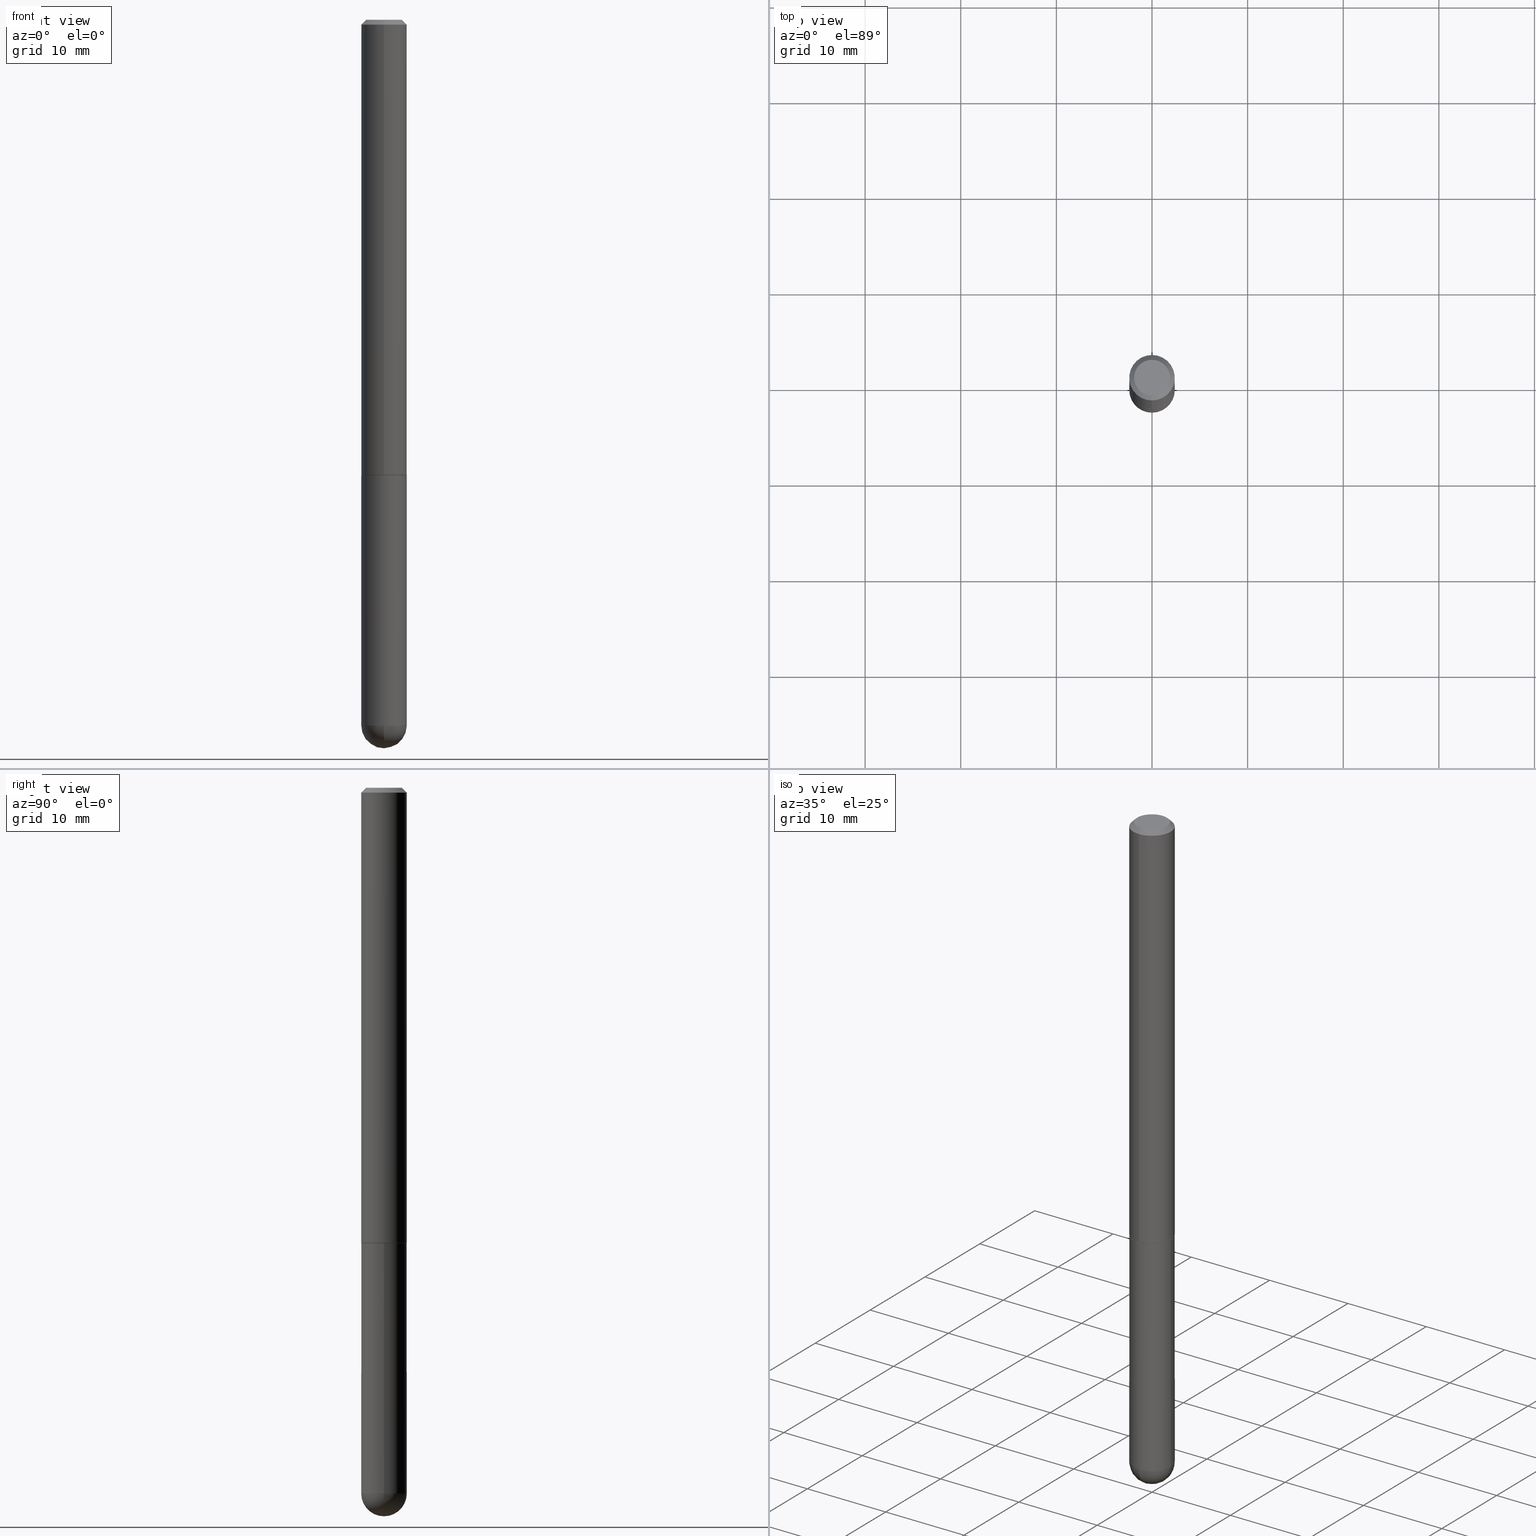
[diagram: canonical four-view strip — front | top / right | iso, engineering-drawing reading convention]
A machine part, canonical four-view strip (front | top / right | iso — engineering-drawing reading convention). The complete STEP part file that produces these views, byte-faithful:
ISO-10303-21;
HEADER;
FILE_DESCRIPTION (( 'STEP AP203' ),
    '1' );
FILE_NAME ('31979.STEP',
    '2024-02-21T17:25:32',
    ( '' ),
    ( '' ),
    'SwSTEP 2.0',
    'SolidWorks 2023',
    '' );
FILE_SCHEMA (( 'CONFIG_CONTROL_DESIGN' ));
ENDSEC;

DATA;
#1 = CARTESIAN_POINT ( 'NONE',  ( -6.431716872910807882E-16, -0.09375000000000011102, -0.01999999999999968817 ) ) ;
#2 = CARTESIAN_POINT ( 'NONE',  ( 6.546527510331333567E-16, 0.09374999999999346356, -1.875000000000000444 ) ) ;
#3 = CONICAL_SURFACE ( 'NONE', #42, 0.09375000000000004163, 0.7853981633974469467 ) ;
#4 = COORDINATED_UNIVERSAL_TIME_OFFSET ( 5, 0, .BEHIND. ) ;
#5 = APPROVAL_STATUS ( 'not_yet_approved' ) ;
#6 = APPROVAL_DATE_TIME ( #284, #140 ) ;
#7 = CALENDAR_DATE ( 2024, 21, 2 ) ;
#8 = CARTESIAN_POINT ( 'NONE',  ( 4.585254011597131119E-29, -6.546527510330898707E-15, -1.875000000000000000 ) ) ;
#9 = CARTESIAN_POINT ( 'NONE',  ( 4.890944814244553657E-31, -6.982952364192427333E-17, -0.02000000000000001776 ) ) ;
#10 = AXIS2_PLACEMENT_3D ( 'NONE', #368, #96, #164 ) ;
#11 = CIRCLE ( 'NONE', #192, 0.09374999999999998612 ) ;
#12 = DIRECTION ( 'NONE',  ( 1.000000000000000000, -6.982962677686261189E-15, 0.000000000000000000 ) ) ;
#13 = CARTESIAN_POINT ( 'NONE',  ( 4.582815290947142665E-29, -6.543026365248299499E-15, -1.874000000000000110 ) ) ;
#14 = CARTESIAN_POINT ( 'NONE',  ( 7.009295232622052523E-29, -1.094288585279848383E-14, -3.000000000000000444 ) ) ;
#15 = EDGE_LOOP ( 'NONE', ( #345, #296, #24, #259, #21 ) ) ;
#16 = DIRECTION ( 'NONE',  ( 2.438088387897960049E-29, -3.491481338843145188E-15, -1.000000000000000000 ) ) ;
#17 = AXIS2_PLACEMENT_3D ( 'NONE', #51, #74, #346 ) ;
#18 = ORIENTED_EDGE ( 'NONE', *, *, #193, .F. ) ;
#19 = EDGE_CURVE ( 'NONE', #208, #76, #230, .T. ) ;
#20 = DIRECTION ( 'NONE',  ( -2.445468806185136597E-29, 3.491481338843145583E-15, 1.000000000000000000 ) ) ;
#21 = ORIENTED_EDGE ( 'NONE', *, *, #148, .F. ) ;
#22 = EDGE_CURVE ( 'NONE', #171, #89, #121, .T. ) ;
#23 = EDGE_CURVE ( 'NONE', #76, #208, #127, .T. ) ;
#24 = ORIENTED_EDGE ( 'NONE', *, *, #321, .T. ) ;
#25 = VECTOR ( 'NONE', #88, 39.37007874015748143 ) ;
#26 = VECTOR ( 'NONE', #278, 39.37007874015748143 ) ;
#27 = CARTESIAN_POINT ( 'NONE',  ( 4.585260763354266231E-29, -6.546517841430395845E-15, -1.875000000000000000 ) ) ;
#28 = FACE_OUTER_BOUND ( 'NONE', #238, .T. ) ;
#29 = EDGE_CURVE ( 'NONE', #101, #76, #395, .T. ) ;
#30 = CARTESIAN_POINT ( 'NONE',  ( -0.09375000000000001388, -7.680688760896801533E-15, -1.875000000000000000 ) ) ;
#31 = APPLICATION_PROTOCOL_DEFINITION ( 'international standard', 'config_control_design', 1994, #396 ) ;
#32 = COORDINATED_UNIVERSAL_TIME_OFFSET ( 5, 0, .BEHIND. ) ;
#33 = CC_DESIGN_APPROVAL ( #140, ( #107 ) ) ;
#34 = APPROVAL_STATUS ( 'not_yet_approved' ) ;
#35 = PERSON_AND_ORGANIZATION ( #70, #384 ) ;
#36 = AXIS2_PLACEMENT_3D ( 'NONE', #305, #268, #337 ) ;
#37 = AXIS2_PLACEMENT_3D ( 'NONE', #27, #403, #303 ) ;
#38 = EDGE_CURVE ( 'NONE', #244, #146, #265, .T. ) ;
#39 = FACE_OUTER_BOUND ( 'NONE', #57, .T. ) ;
#40 = ORIENTED_EDGE ( 'NONE', *, *, #362, .F. ) ;
#41 = DIRECTION ( 'NONE',  ( -2.445472407122275024E-29, 3.491476182096210881E-15, 1.000000000000000000 ) ) ;
#42 = AXIS2_PLACEMENT_3D ( 'NONE', #370, #379, #75 ) ;
#43 = DIRECTION ( 'NONE',  ( -1.000000000000000000, 7.105427357601001070E-15, -4.926315508542082329E-29 ) ) ;
#44 = CARTESIAN_POINT ( 'NONE',  ( -6.661338147750251947E-16, -0.09375000000001050549, -2.906249999999999556 ) ) ;
#45 = ORIENTED_EDGE ( 'NONE', *, *, #60, .F. ) ;
#46 = ORIENTED_EDGE ( 'NONE', *, *, #233, .F. ) ;
#47 = DIRECTION ( 'NONE',  ( 6.982962677686265133E-15, 1.000000000000000000, -5.827942386483744967E-15 ) ) ;
#48 = EDGE_LOOP ( 'NONE', ( #173, #369, #78, #103 ) ) ;
#49 = CARTESIAN_POINT ( 'NONE',  ( 0.000000000000000000, 0.000000000000000000, 0.000000000000000000 ) ) ;
#50 = VERTEX_POINT ( 'NONE', #14 ) ;
#51 = CARTESIAN_POINT ( 'NONE',  ( 4.585254011597131119E-29, -6.546527510330898707E-15, -1.875000000000000000 ) ) ;
#52 = PERSON_AND_ORGANIZATION_ROLE ( 'design_owner' ) ;
#53 = AXIS2_PLACEMENT_3D ( 'NONE', #343, #177, #100 ) ;
#54 = DATE_AND_TIME ( #90, #178 ) ;
#55 = APPROVAL_PERSON_ORGANIZATION ( #85, #291, #390 ) ;
#56 = CALENDAR_DATE ( 2024, 21, 2 ) ;
#57 = EDGE_LOOP ( 'NONE', ( #389, #179, #73, #64 ) ) ;
#58 = AXIS2_PLACEMENT_3D ( 'NONE', #311, #342, #142 ) ;
#59 = FACE_OUTER_BOUND ( 'NONE', #309, .T. ) ;
#60 = EDGE_CURVE ( 'NONE', #50, #146, #106, .T. ) ;
#61 = ORIENTED_EDGE ( 'NONE', *, *, #193, .T. ) ;
#62 = CARTESIAN_POINT ( 'NONE',  ( 4.582815290947142665E-29, -6.543026365248299499E-15, -1.874000000000000110 ) ) ;
#63 = DIRECTION ( 'NONE',  ( -2.445468806185136877E-29, 3.491481338843145188E-15, 1.000000000000000000 ) ) ;
#64 = ORIENTED_EDGE ( 'NONE', *, *, #174, .F. ) ;
#65 = CARTESIAN_POINT ( 'NONE',  ( 6.546527510330881944E-16, 0.09374999999999997224, -0.02000000000000034736 ) ) ;
#66 = EDGE_CURVE ( 'NONE', #89, #229, #326, .T. ) ;
#67 = CARTESIAN_POINT ( 'NONE',  ( -6.476697883553553415E-16, -0.09275000000000654943, -1.874999999999999778 ) ) ;
#68 = ORIENTED_EDGE ( 'NONE', *, *, #150, .F. ) ;
#69 = ORIENTED_EDGE ( 'NONE', *, *, #148, .T. ) ;
#70 = PERSON ( 'UNSPECIFIED', 'UNSPECIFIED', 'UNSPECIFIED', ('UNSPECIFIED'), ('UNSPECIFIED'), ('UNSPECIFIED') ) ;
#71 = AXIS2_PLACEMENT_3D ( 'NONE', #371, #149, #186 ) ;
#72 = CIRCLE ( 'NONE', #294, 0.07374999999999994060 ) ;
#73 = ORIENTED_EDGE ( 'NONE', *, *, #113, .T. ) ;
#74 = DIRECTION ( 'NONE',  ( -2.445468806185136597E-29, 3.491481338843145583E-15, 1.000000000000000000 ) ) ;
#75 = DIRECTION ( 'NONE',  ( 6.982962677686266711E-15, 1.000000000000000000, -3.505871591869136121E-15 ) ) ;
#76 = VERTEX_POINT ( 'NONE', #65 ) ;
#77 = FACE_OUTER_BOUND ( 'NONE', #200, .T. ) ;
#78 = ORIENTED_EDGE ( 'NONE', *, *, #19, .T. ) ;
#79 = DIRECTION ( 'NONE',  ( -6.982962677686267499E-15, -1.000000000000000000, 3.491476182096211275E-15 ) ) ;
#80 = CIRCLE ( 'NONE', #98, 0.09274999999999999911 ) ;
#81 = LOCAL_TIME ( 12, 25, 32.00000000000000000, #4 ) ;
#82 =( LENGTH_UNIT ( ) NAMED_UNIT ( * ) SI_UNIT ( $, .METRE. ) );
#83 = ADVANCED_FACE ( 'NONE', ( #39 ), #364, .T. ) ;
#84 = ADVANCED_FACE ( 'NONE', ( #133 ), #183, .T. ) ;
#85 = PERSON_AND_ORGANIZATION ( #70, #384 ) ;
#86 = AXIS2_PLACEMENT_3D ( 'NONE', #49, #203, #212 ) ;
#87 =( NAMED_UNIT ( * ) SI_UNIT ( $, .STERADIAN. ) SOLID_ANGLE_UNIT ( ) );
#88 = DIRECTION ( 'NONE',  ( 4.937700262164540942E-15, 0.7071067811865441310, -0.7071067811865509034 ) ) ;
#89 = VERTEX_POINT ( 'NONE', #330 ) ;
#90 = CALENDAR_DATE ( 2024, 21, 2 ) ;
#91 = DIRECTION ( 'NONE',  ( -2.445472407122275024E-29, 3.491476182096210881E-15, 1.000000000000000000 ) ) ;
#92 = ORIENTED_EDGE ( 'NONE', *, *, #362, .T. ) ;
#93 = AXIS2_PLACEMENT_3D ( 'NONE', #241, #138, #377 ) ;
#94 = DIRECTION ( 'NONE',  ( 2.445472407122274464E-29, -3.491476182096211275E-15, -1.000000000000000000 ) ) ;
#95 = ORIENTED_EDGE ( 'NONE', *, *, #317, .T. ) ;
#96 = DIRECTION ( 'NONE',  ( -2.445472407122275024E-29, 3.491476182096210881E-15, 1.000000000000000000 ) ) ;
#97 = ORIENTED_EDGE ( 'NONE', *, *, #207, .F. ) ;
#98 = AXIS2_PLACEMENT_3D ( 'NONE', #126, #124, #357 ) ;
#99 = CYLINDRICAL_SURFACE ( 'NONE', #10, 0.09375000000000013878 ) ;
#100 = DIRECTION ( 'NONE',  ( -6.982962677686267499E-15, -1.000000000000000000, 3.491476182096211275E-15 ) ) ;
#101 = VERTEX_POINT ( 'NONE', #297 ) ;
#102 = DIRECTION ( 'NONE',  ( -2.445472407122274744E-29, 3.491476182096211275E-15, 1.000000000000000000 ) ) ;
#103 = ORIENTED_EDGE ( 'NONE', *, *, #29, .F. ) ;
#104 = FACE_OUTER_BOUND ( 'NONE', #136, .T. ) ;
#105 = FACE_OUTER_BOUND ( 'NONE', #134, .T. ) ;
#106 = CIRCLE ( 'NONE', #115, 0.09375000000000026368 ) ;
#107 = SECURITY_CLASSIFICATION ( '', '', #247 ) ;
#108 = VERTEX_POINT ( 'NONE', #44 ) ;
#109 =( CONVERSION_BASED_UNIT ( 'INCH', #347 ) LENGTH_UNIT ( ) NAMED_UNIT ( #306 ) );
#110 = SPHERICAL_SURFACE ( 'NONE', #167, 0.09375000000000026368 ) ;
#111 = ORIENTED_EDGE ( 'NONE', *, *, #163, .F. ) ;
#112 = DIRECTION ( 'NONE',  ( -6.982962677686265922E-15, -1.000000000000000000, 2.945388672414299892E-15 ) ) ;
#113 = EDGE_CURVE ( 'NONE', #171, #374, #287, .T. ) ;
#114 = CARTESIAN_POINT ( 'NONE',  ( -3.235934848960953060E-45, 4.620043726135303486E-31, 1.323235068830263226E-16 ) ) ;
#115 = AXIS2_PLACEMENT_3D ( 'NONE', #333, #261, #231 ) ;
#116 = PERSON_AND_ORGANIZATION_ROLE ( 'design_supplier' ) ;
#117 = APPROVAL ( #34, 'UNSPECIFIED' ) ;
#118 = APPROVAL_ROLE ( '' ) ;
#119 = PERSON_AND_ORGANIZATION ( #70, #384 ) ;
#120 = VECTOR ( 'NONE', #162, 39.37007874015748143 ) ;
#121 = CIRCLE ( 'NONE', #219, 0.09274999999999999911 ) ;
#122 = ORIENTED_EDGE ( 'NONE', *, *, #412, .T. ) ;
#123 = MECHANICAL_CONTEXT ( 'NONE', #144, 'mechanical' ) ;
#124 = DIRECTION ( 'NONE',  ( -2.445472407122275024E-29, 3.491476182096210881E-15, 1.000000000000000000 ) ) ;
#125 = EDGE_CURVE ( 'NONE', #191, #365, #170, .T. ) ;
#126 = CARTESIAN_POINT ( 'NONE',  ( 4.585260763354266231E-29, -6.546517841430395845E-15, -1.875000000000000000 ) ) ;
#127 = CIRCLE ( 'NONE', #71, 0.09375000000000004163 ) ;
#128 = LINE ( 'NONE', #361, #205 ) ;
#129 = UNCERTAINTY_MEASURE_WITH_UNIT (LENGTH_MEASURE( 1.000000000000000082E-05 ), #109, 'distance_accuracy_value', 'NONE');
#130 = CARTESIAN_POINT ( 'NONE',  ( -6.431716872910807882E-16, -0.09375000000000011102, -0.01999999999999968817 ) ) ;
#131 = ADVANCED_FACE ( 'NONE', ( #399 ), #99, .T. ) ;
#132 = EDGE_LOOP ( 'NONE', ( #45, #176, #302, #202 ) ) ;
#133 = FACE_OUTER_BOUND ( 'NONE', #48, .T. ) ;
#134 = EDGE_LOOP ( 'NONE', ( #358, #141, #211, #97, #398 ) ) ;
#135 = AXIS2_PLACEMENT_3D ( 'NONE', #175, #308, #277 ) ;
#136 = EDGE_LOOP ( 'NONE', ( #242, #111 ) ) ;
#137 = DIRECTION ( 'NONE',  ( 1.000000000000000000, -6.982962677686263555E-15, 0.000000000000000000 ) ) ;
#138 = DIRECTION ( 'NONE',  ( -2.445468806185136597E-29, 3.491481338843145583E-15, 1.000000000000000000 ) ) ;
#139 = ORIENTED_EDGE ( 'NONE', *, *, #23, .F. ) ;
#140 = APPROVAL ( #5, 'UNSPECIFIED' ) ;
#141 = ORIENTED_EDGE ( 'NONE', *, *, #125, .T. ) ;
#142 = DIRECTION ( 'NONE',  ( 1.000000000000000000, -6.982962677686263555E-15, 0.000000000000000000 ) ) ;
#143 = CYLINDRICAL_SURFACE ( 'NONE', #93, 0.09374999999999998612 ) ;
#144 = APPLICATION_CONTEXT ( 'configuration controlled 3d designs of mechanical parts and assemblies' ) ;
#145 = CC_DESIGN_SECURITY_CLASSIFICATION ( #107, ( #401 ) ) ;
#146 = VERTEX_POINT ( 'NONE', #254 ) ;
#147 = PLANE ( 'NONE',  #400 ) ;
#148 = EDGE_CURVE ( 'NONE', #365, #204, #310, .T. ) ;
#149 = DIRECTION ( 'NONE',  ( -2.445472407122275024E-29, 3.491476182096210881E-15, 1.000000000000000000 ) ) ;
#150 = EDGE_CURVE ( 'NONE', #50, #108, #300, .T. ) ;
#151 = CC_DESIGN_PERSON_AND_ORGANIZATION_ASSIGNMENT ( #318, #320, ( #107 ) ) ;
#152 = DATE_AND_TIME ( #185, #81 ) ;
#153 = CARTESIAN_POINT ( 'NONE',  ( 6.776023940061668108E-29, -1.062130000915294250E-14, -2.906250000000000000 ) ) ;
#154 = AXIS2_PLACEMENT_3D ( 'NONE', #8, #201, #12 ) ;
#155 = DATE_AND_TIME ( #157, #168 ) ;
#156 = COORDINATED_UNIVERSAL_TIME_OFFSET ( 5, 0, .BEHIND. ) ;
#157 = CALENDAR_DATE ( 2024, 21, 2 ) ;
#158 = ADVANCED_BREP_SHAPE_REPRESENTATION ( '31979', ( #187, #335, #352 ), #216 ) ;
#159 = CIRCLE ( 'NONE', #312, 0.09375000000000024980 ) ;
#160 = AXIS2_PLACEMENT_3D ( 'NONE', #376, #269, #112 ) ;
#161 = PERSON_AND_ORGANIZATION ( #70, #384 ) ;
#162 = DIRECTION ( 'NONE',  ( 5.024295867788490741E-15, 0.7071067811866103003, 0.7071067811864847341 ) ) ;
#163 = EDGE_CURVE ( 'NONE', #89, #171, #80, .T. ) ;
#164 = DIRECTION ( 'NONE',  ( -6.982962677686266711E-15, -1.000000000000000000, 3.491476182096210486E-15 ) ) ;
#165 = ADVANCED_FACE ( 'NONE', ( #59 ), #392, .F. ) ;
#166 = CARTESIAN_POINT ( 'NONE',  ( 0.09375000000000001388, -7.201180261363985422E-15, -1.875000000000000000 ) ) ;
#167 = AXIS2_PLACEMENT_3D ( 'NONE', #373, #340, #47 ) ;
#168 = LOCAL_TIME ( 12, 25, 32.00000000000000000, #32 ) ;
#169 = CARTESIAN_POINT ( 'NONE',  ( 5.149934974793617952E-16, 0.07374999999999994060, -1.913346149880821875E-16 ) ) ;
#170 = LINE ( 'NONE', #295, #281 ) ;
#171 = VERTEX_POINT ( 'NONE', #292 ) ;
#172 = CIRCLE ( 'NONE', #240, 0.09375000000000024980 ) ;
#173 = ORIENTED_EDGE ( 'NONE', *, *, #412, .F. ) ;
#174 = EDGE_CURVE ( 'NONE', #229, #374, #159, .T. ) ;
#175 = CARTESIAN_POINT ( 'NONE',  ( 0.000000000000000000, 0.000000000000000000, 0.000000000000000000 ) ) ;
#176 = ORIENTED_EDGE ( 'NONE', *, *, #150, .T. ) ;
#177 = DIRECTION ( 'NONE',  ( -2.445472407122275024E-29, 3.491476182096210881E-15, 1.000000000000000000 ) ) ;
#178 = LOCAL_TIME ( 12, 25, 32.00000000000000000, #324 ) ;
#179 = ORIENTED_EDGE ( 'NONE', *, *, #163, .T. ) ;
#180 = PLANE ( 'NONE',  #37 ) ;
#181 = PERSON_AND_ORGANIZATION ( #70, #384 ) ;
#182 = COORDINATED_UNIVERSAL_TIME_OFFSET ( 5, 0, .BEHIND. ) ;
#183 = CONICAL_SURFACE ( 'NONE', #375, 0.09375000000000004163, 0.7853981633974469467 ) ;
#184 = VECTOR ( 'NONE', #314, 39.37007874015748143 ) ;
#185 = CALENDAR_DATE ( 2024, 21, 2 ) ;
#186 = DIRECTION ( 'NONE',  ( -6.982962677686266711E-15, -1.000000000000000000, 3.505871591869136121E-15 ) ) ;
#187 = MANIFOLD_SOLID_BREP ( 'Body-Move/Copy2[1]', #258 ) ;
#188 = CARTESIAN_POINT ( 'NONE',  ( 0.000000000000000000, 0.000000000000000000, 0.000000000000000000 ) ) ;
#189 = APPROVAL_DATE_TIME ( #152, #291 ) ;
#190 = AXIS2_PLACEMENT_3D ( 'NONE', #169, #94, #225 ) ;
#191 = VERTEX_POINT ( 'NONE', #329 ) ;
#192 = AXIS2_PLACEMENT_3D ( 'NONE', #276, #275, #137 ) ;
#193 = EDGE_CURVE ( 'NONE', #374, #229, #172, .T. ) ;
#194 = DIRECTION ( 'NONE',  ( 2.445472407122275024E-29, -3.491476182096210881E-15, -1.000000000000000000 ) ) ;
#195 = DIRECTION ( 'NONE',  ( -6.982962677686265133E-15, -1.000000000000000000, 2.913971193241872878E-15 ) ) ;
#196 = ORIENTED_EDGE ( 'NONE', *, *, #113, .F. ) ;
#197 = DIRECTION ( 'NONE',  ( -4.937700262164969294E-15, -0.7071067811866054154, 0.7071067811864896191 ) ) ;
#198 = AXIS2_PLACEMENT_3D ( 'NONE', #328, #91, #262 ) ;
#199 = DIRECTION ( 'NONE',  ( -2.445468806185136597E-29, 3.491481338843145583E-15, 1.000000000000000000 ) ) ;
#200 = EDGE_LOOP ( 'NONE', ( #290, #46, #255, #405 ) ) ;
#201 = DIRECTION ( 'NONE',  ( -2.445468806185136597E-29, 3.491481338843145583E-15, 1.000000000000000000 ) ) ;
#202 = ORIENTED_EDGE ( 'NONE', *, *, #237, .F. ) ;
#203 = DIRECTION ( 'NONE',  ( -2.445468806185136597E-29, 3.491481338843145583E-15, 1.000000000000000000 ) ) ;
#204 = VERTEX_POINT ( 'NONE', #166 ) ;
#205 = VECTOR ( 'NONE', #63, 39.37007874015748143 ) ;
#206 = CC_DESIGN_APPROVAL ( #117, ( #359 ) ) ;
#207 = EDGE_CURVE ( 'NONE', #244, #204, #128, .T. ) ;
#208 = VERTEX_POINT ( 'NONE', #130 ) ;
#209 = CC_DESIGN_PERSON_AND_ORGANIZATION_ASSIGNMENT ( #35, #116, ( #401 ) ) ;
#210 = CYLINDRICAL_SURFACE ( 'NONE', #86, 0.09374999999999998612 ) ;
#211 = ORIENTED_EDGE ( 'NONE', *, *, #317, .F. ) ;
#212 = DIRECTION ( 'NONE',  ( 1.000000000000000000, -6.982962677686266711E-15, 4.876176775795935793E-29 ) ) ;
#213 = ORIENTED_EDGE ( 'NONE', *, *, #22, .T. ) ;
#214 = CARTESIAN_POINT ( 'NONE',  ( 6.661338147750948117E-16, 0.09375000000000013878, -3.273258920715202261E-16 ) ) ;
#215 = VECTOR ( 'NONE', #102, 39.37007874015748143 ) ;
#216 =( GEOMETRIC_REPRESENTATION_CONTEXT ( 3 ) GLOBAL_UNCERTAINTY_ASSIGNED_CONTEXT ( ( #129 ) ) GLOBAL_UNIT_ASSIGNED_CONTEXT ( ( #109, #372, #87 ) ) REPRESENTATION_CONTEXT ( 'NONE', 'WORKASPACE' ) );
#217 = DIRECTION ( 'NONE',  ( 1.000000000000000000, 0.000000000000000000, 0.000000000000000000 ) ) ;
#218 = CC_DESIGN_DATE_AND_TIME_ASSIGNMENT ( #155, #282, ( #107 ) ) ;
#219 = AXIS2_PLACEMENT_3D ( 'NONE', #380, #274, #402 ) ;
#220 = LOCAL_TIME ( 12, 25, 32.00000000000000000, #156 ) ;
#221 = PERSON_AND_ORGANIZATION ( #70, #384 ) ;
#222 = PERSON_AND_ORGANIZATION_ROLE ( 'creator' ) ;
#223 = ADVANCED_FACE ( 'NONE', ( #397 ), #110, .T. ) ;
#224 = CARTESIAN_POINT ( 'NONE',  ( 6.776023940061668108E-29, -1.062130000915294250E-14, -2.906250000000000000 ) ) ;
#225 = DIRECTION ( 'NONE',  ( 6.982962677686265922E-15, 1.000000000000000000, -3.491476182096211275E-15 ) ) ;
#226 = DIRECTION ( 'NONE',  ( -6.982962677686265133E-15, -1.000000000000000000, 2.913971193241872878E-15 ) ) ;
#227 = PRODUCT_RELATED_PRODUCT_CATEGORY ( 'detail', '', ( #325 ) ) ;
#228 = CARTESIAN_POINT ( 'NONE',  ( 6.590283874175386700E-16, 0.09274999999999346267, -1.875000000000000444 ) ) ;
#229 = VERTEX_POINT ( 'NONE', #304 ) ;
#230 = CIRCLE ( 'NONE', #36, 0.09375000000000004163 ) ;
#231 = DIRECTION ( 'NONE',  ( 6.982962677686265133E-15, 1.000000000000000000, 0.000000000000000000 ) ) ;
#232 = EDGE_LOOP ( 'NONE', ( #68, #327, #288, #235 ) ) ;
#233 = EDGE_CURVE ( 'NONE', #101, #411, #338, .T. ) ;
#234 = CARTESIAN_POINT ( 'NONE',  ( 7.107143717975553234E-29, -1.014711764101289221E-14, -2.906250000000000000 ) ) ;
#235 = ORIENTED_EDGE ( 'NONE', *, *, #321, .F. ) ;
#236 = FACE_OUTER_BOUND ( 'NONE', #344, .T. ) ;
#237 = EDGE_CURVE ( 'NONE', #146, #191, #391, .T. ) ;
#238 = EDGE_LOOP ( 'NONE', ( #95, #69 ) ) ;
#239 = LINE ( 'NONE', #1, #26 ) ;
#240 = AXIS2_PLACEMENT_3D ( 'NONE', #13, #41, #226 ) ;
#241 = CARTESIAN_POINT ( 'NONE',  ( 0.000000000000000000, 0.000000000000000000, 0.000000000000000000 ) ) ;
#242 = ORIENTED_EDGE ( 'NONE', *, *, #22, .F. ) ;
#243 = DIRECTION ( 'NONE',  ( 1.000000000000000000, -6.982962677686263555E-15, 0.000000000000000000 ) ) ;
#244 = VERTEX_POINT ( 'NONE', #406 ) ;
#245 = FACE_OUTER_BOUND ( 'NONE', #15, .T. ) ;
#246 = CIRCLE ( 'NONE', #58, 0.09374999999999998612 ) ;
#247 = SECURITY_CLASSIFICATION_LEVEL ( 'unclassified' ) ;
#248 = PERSON_AND_ORGANIZATION_ROLE ( 'creator' ) ;
#249 = SHAPE_DEFINITION_REPRESENTATION ( #322, #158 ) ;
#250 = VECTOR ( 'NONE', #197, 39.37007874015748143 ) ;
#251 = ADVANCED_FACE ( 'NONE', ( #105 ), #143, .T. ) ;
#252 = CC_DESIGN_DATE_AND_TIME_ASSIGNMENT ( #54, #253, ( #359 ) ) ;
#253 = DATE_TIME_ROLE ( 'creation_date' ) ;
#254 = CARTESIAN_POINT ( 'NONE',  ( 6.546527510331577127E-16, 0.09374999999998974431, -2.906250000000000888 ) ) ;
#255 = ORIENTED_EDGE ( 'NONE', *, *, #29, .T. ) ;
#256 = ADVANCED_FACE ( 'NONE', ( #77 ), #3, .T. ) ;
#257 = DIRECTION ( 'NONE',  ( 1.000000000000000000, -6.982962677686263555E-15, 0.000000000000000000 ) ) ;
#258 = CLOSED_SHELL ( 'NONE', ( #251, #223, #299, #280, #266 ) ) ;
#259 = ORIENTED_EDGE ( 'NONE', *, *, #207, .T. ) ;
#260 = CC_DESIGN_APPROVAL ( #291, ( #401 ) ) ;
#261 = DIRECTION ( 'NONE',  ( 1.000000000000000000, -6.982962677686265922E-15, 4.883557194083112340E-29 ) ) ;
#262 = DIRECTION ( 'NONE',  ( -6.982962677686265922E-15, -1.000000000000000000, 2.945388672414299892E-15 ) ) ;
#263 = EDGE_LOOP ( 'NONE', ( #61, #92, #298, #394 ) ) ;
#264 = DIRECTION ( 'NONE',  ( -2.445468806185136877E-29, 3.491481338843145188E-15, 1.000000000000000000 ) ) ;
#265 = CIRCLE ( 'NONE', #407, 0.09374999999999998612 ) ;
#266 = ADVANCED_FACE ( 'NONE', ( #245 ), #210, .T. ) ;
#267 = LOCAL_TIME ( 12, 25, 32.00000000000000000, #182 ) ;
#268 = DIRECTION ( 'NONE',  ( -2.445472407122275024E-29, 3.491476182096210881E-15, 1.000000000000000000 ) ) ;
#269 = DIRECTION ( 'NONE',  ( -2.445472407122275024E-29, 3.491476182096210881E-15, 1.000000000000000000 ) ) ;
#270 = FACE_OUTER_BOUND ( 'NONE', #232, .T. ) ;
#271 = ORIENTED_EDGE ( 'NONE', *, *, #174, .T. ) ;
#272 = CARTESIAN_POINT ( 'NONE',  ( -6.546527510330432293E-16, -0.09375000000000678624, -1.873999999999999666 ) ) ;
#273 = ADVANCED_FACE ( 'NONE', ( #404 ), #313, .T. ) ;
#274 = DIRECTION ( 'NONE',  ( -2.445472407122275024E-29, 3.491476182096210881E-15, 1.000000000000000000 ) ) ;
#275 = DIRECTION ( 'NONE',  ( -2.445468806185136597E-29, 3.491481338843145583E-15, 1.000000000000000000 ) ) ;
#276 = CARTESIAN_POINT ( 'NONE',  ( 7.107143717975553234E-29, -1.014711764101289221E-14, -2.906250000000000000 ) ) ;
#277 = DIRECTION ( 'NONE',  ( -6.982962677686266711E-15, -1.000000000000000000, 3.491476182096210486E-15 ) ) ;
#278 = DIRECTION ( 'NONE',  ( -4.851104656540957175E-15, -0.7071067811865490160, -0.7071067811865460184 ) ) ;
#279 = DIRECTION ( 'NONE',  ( 6.982962677686265133E-15, 1.000000000000000000, -5.827942386483744967E-15 ) ) ;
#280 = ADVANCED_FACE ( 'NONE', ( #28 ), #147, .F. ) ;
#281 = VECTOR ( 'NONE', #264, 39.37007874015748143 ) ;
#282 = DATE_TIME_ROLE ( 'classification_date' ) ;
#283 = CC_DESIGN_PERSON_AND_ORGANIZATION_ASSIGNMENT ( #119, #222, ( #401 ) ) ;
#284 = DATE_AND_TIME ( #7, #220 ) ;
#285 = AXIS2_PLACEMENT_3D ( 'NONE', #224, #43, #289 ) ;
#286 = PERSON_AND_ORGANIZATION ( #70, #384 ) ;
#287 = LINE ( 'NONE', #67, #250 ) ;
#288 = ORIENTED_EDGE ( 'NONE', *, *, #38, .F. ) ;
#289 = DIRECTION ( 'NONE',  ( -7.105427357601001070E-15, -1.000000000000000000, 0.000000000000000000 ) ) ;
#290 = ORIENTED_EDGE ( 'NONE', *, *, #367, .F. ) ;
#291 = APPROVAL ( #323, 'UNSPECIFIED' ) ;
#292 = CARTESIAN_POINT ( 'NONE',  ( -6.476697883553553415E-16, -0.09275000000000654943, -1.874999999999999778 ) ) ;
#293 = CLOSED_SHELL ( 'NONE', ( #386, #273, #84, #256, #131, #83, #332, #165 ) ) ;
#294 = AXIS2_PLACEMENT_3D ( 'NONE', #114, #410, #79 ) ;
#295 = CARTESIAN_POINT ( 'NONE',  ( -0.09374999999999998612, 6.661338147750938256E-16, -4.611501647113973295E-30 ) ) ;
#296 = ORIENTED_EDGE ( 'NONE', *, *, #366, .T. ) ;
#297 = CARTESIAN_POINT ( 'NONE',  ( 5.848231242562249948E-16, 0.07374999999999994060, -1.251728615465690015E-16 ) ) ;
#298 = ORIENTED_EDGE ( 'NONE', *, *, #19, .F. ) ;
#299 = ADVANCED_FACE ( 'NONE', ( #270 ), #351, .T. ) ;
#300 = CIRCLE ( 'NONE', #285, 0.09375000000000026368 ) ;
#301 = CARTESIAN_POINT ( 'NONE',  ( -6.546527510330884902E-16, -0.09375000000000013878, 3.273258920715202261E-16 ) ) ;
#302 = ORIENTED_EDGE ( 'NONE', *, *, #366, .F. ) ;
#303 = DIRECTION ( 'NONE',  ( -6.982962677686265922E-15, -1.000000000000000000, 3.491476182096211275E-15 ) ) ;
#304 = CARTESIAN_POINT ( 'NONE',  ( 6.661338147751182803E-16, 0.09374999999999368561, -1.874000000000000332 ) ) ;
#305 = CARTESIAN_POINT ( 'NONE',  ( 4.890944814244553657E-31, -6.982952364192427333E-17, -0.02000000000000001776 ) ) ;
#306 = DIMENSIONAL_EXPONENTS ( 1.000000000000000000, 0.000000000000000000, 0.000000000000000000, 0.000000000000000000, 0.000000000000000000, 0.000000000000000000, 0.000000000000000000 ) ;
#307 = CC_DESIGN_PERSON_AND_ORGANIZATION_ASSIGNMENT ( #221, #248, ( #359 ) ) ;
#308 = DIRECTION ( 'NONE',  ( -2.445472407122275024E-29, 3.491476182096210881E-15, 1.000000000000000000 ) ) ;
#309 = EDGE_LOOP ( 'NONE', ( #334, #122 ) ) ;
#310 = CIRCLE ( 'NONE', #154, 0.09375000000000001388 ) ;
#311 = CARTESIAN_POINT ( 'NONE',  ( 7.107143717975553234E-29, -1.014711764101289221E-14, -2.906250000000000000 ) ) ;
#312 = AXIS2_PLACEMENT_3D ( 'NONE', #62, #360, #195 ) ;
#313 = CYLINDRICAL_SURFACE ( 'NONE', #135, 0.09375000000000013878 ) ;
#314 = DIRECTION ( 'NONE',  ( -2.445472407122274744E-29, 3.491476182096211275E-15, 1.000000000000000000 ) ) ;
#315 = EDGE_CURVE ( 'NONE', #374, #208, #336, .T. ) ;
#316 = APPLICATION_PROTOCOL_DEFINITION ( 'international standard', 'config_control_design', 1994, #144 ) ;
#317 = EDGE_CURVE ( 'NONE', #204, #365, #383, .T. ) ;
#318 = PERSON_AND_ORGANIZATION ( #70, #384 ) ;
#319 = APPROVAL_PERSON_ORGANIZATION ( #161, #117, #354 ) ;
#320 = PERSON_AND_ORGANIZATION_ROLE ( 'classification_officer' ) ;
#321 = EDGE_CURVE ( 'NONE', #108, #244, #246, .T. ) ;
#322 = PRODUCT_DEFINITION_SHAPE ( 'NONE', 'NONE',  #359 ) ;
#323 = APPROVAL_STATUS ( 'not_yet_approved' ) ;
#324 = COORDINATED_UNIVERSAL_TIME_OFFSET ( 5, 0, .BEHIND. ) ;
#325 = PRODUCT ( '31979', '31979', '', ( #123 ) ) ;
#326 = LINE ( 'NONE', #228, #120 ) ;
#327 = ORIENTED_EDGE ( 'NONE', *, *, #60, .T. ) ;
#328 = CARTESIAN_POINT ( 'NONE',  ( 4.585260763354266231E-29, -6.546517841430395845E-15, -1.875000000000000000 ) ) ;
#329 = CARTESIAN_POINT ( 'NONE',  ( -0.09374999999999998612, -7.680688760896803110E-15, -2.906250000000000000 ) ) ;
#330 = CARTESIAN_POINT ( 'NONE',  ( 6.625811010963400616E-16, 0.09274999999999346267, -1.875000000000000444 ) ) ;
#331 = EDGE_LOOP ( 'NONE', ( #40, #271, #378, #139 ) ) ;
#332 = ADVANCED_FACE ( 'NONE', ( #104 ), #180, .F. ) ;
#333 = CARTESIAN_POINT ( 'NONE',  ( 6.776023940061668108E-29, -1.062130000915294250E-14, -2.906250000000000000 ) ) ;
#334 = ORIENTED_EDGE ( 'NONE', *, *, #233, .T. ) ;
#335 = MANIFOLD_SOLID_BREP ( 'Body-Move/Copy2[2]', #293 ) ;
#336 = LINE ( 'NONE', #301, #215 ) ;
#337 = DIRECTION ( 'NONE',  ( -6.982962677686266711E-15, -1.000000000000000000, 3.505871591869136121E-15 ) ) ;
#338 = CIRCLE ( 'NONE', #53, 0.07374999999999994060 ) ;
#339 = LINE ( 'NONE', #214, #184 ) ;
#340 = DIRECTION ( 'NONE',  ( -1.000000000000000000, 6.982962677686265133E-15, -4.883557194083112901E-29 ) ) ;
#341 = ORIENTED_EDGE ( 'NONE', *, *, #66, .T. ) ;
#342 = DIRECTION ( 'NONE',  ( -2.445468806185136597E-29, 3.491481338843145583E-15, 1.000000000000000000 ) ) ;
#343 = CARTESIAN_POINT ( 'NONE',  ( -3.235934848960953060E-45, 4.620043726135303486E-31, 1.323235068830263226E-16 ) ) ;
#344 = EDGE_LOOP ( 'NONE', ( #213, #341, #18, #196 ) ) ;
#345 = ORIENTED_EDGE ( 'NONE', *, *, #125, .F. ) ;
#346 = DIRECTION ( 'NONE',  ( 1.000000000000000000, -6.982962677686261189E-15, 0.000000000000000000 ) ) ;
#347 = LENGTH_MEASURE_WITH_UNIT ( LENGTH_MEASURE( 0.02539999999999999897 ), #82 );
#348 = CC_DESIGN_PERSON_AND_ORGANIZATION_ASSIGNMENT ( #181, #52, ( #325 ) ) ;
#349 = DIRECTION ( 'NONE',  ( -1.000000000000000000, 6.982962677686265133E-15, -4.883557194083112901E-29 ) ) ;
#350 = CARTESIAN_POINT ( 'NONE',  ( 6.546527510330881944E-16, 0.09374999999999997224, -0.02000000000000034736 ) ) ;
#351 = SPHERICAL_SURFACE ( 'NONE', #387, 0.09375000000000026368 ) ;
#352 = AXIS2_PLACEMENT_3D ( 'NONE', #188, #355, #217 ) ;
#353 = DATE_AND_TIME ( #56, #267 ) ;
#354 = APPROVAL_ROLE ( '' ) ;
#355 = DIRECTION ( 'NONE',  ( 0.000000000000000000, 0.000000000000000000, 1.000000000000000000 ) ) ;
#356 = AXIS2_PLACEMENT_3D ( 'NONE', #234, #20, #243 ) ;
#357 = DIRECTION ( 'NONE',  ( -6.982962677686265922E-15, -1.000000000000000000, 2.945388672414299892E-15 ) ) ;
#358 = ORIENTED_EDGE ( 'NONE', *, *, #237, .T. ) ;
#359 = PRODUCT_DEFINITION ( 'UNKNOWN', '', #401, #409 ) ;
#360 = DIRECTION ( 'NONE',  ( -2.445472407122275024E-29, 3.491476182096210881E-15, 1.000000000000000000 ) ) ;
#361 = CARTESIAN_POINT ( 'NONE',  ( 0.09374999999999998612, -6.546527510330874055E-16, 4.571415727308689105E-30 ) ) ;
#362 = EDGE_CURVE ( 'NONE', #229, #76, #339, .T. ) ;
#363 = CARTESIAN_POINT ( 'NONE',  ( 7.107143717975553234E-29, -1.014711764101289221E-14, -2.906250000000000000 ) ) ;
#364 = CONICAL_SURFACE ( 'NONE', #198, 0.09274999999999999911, 0.7853981633975336552 ) ;
#365 = VERTEX_POINT ( 'NONE', #30 ) ;
#366 = EDGE_CURVE ( 'NONE', #191, #108, #11, .T. ) ;
#367 = EDGE_CURVE ( 'NONE', #411, #208, #239, .T. ) ;
#368 = CARTESIAN_POINT ( 'NONE',  ( 0.000000000000000000, 0.000000000000000000, 0.000000000000000000 ) ) ;
#369 = ORIENTED_EDGE ( 'NONE', *, *, #367, .T. ) ;
#370 = CARTESIAN_POINT ( 'NONE',  ( 4.890944814244553657E-31, -6.982952364192427333E-17, -0.02000000000000001776 ) ) ;
#371 = CARTESIAN_POINT ( 'NONE',  ( 4.890944814244553657E-31, -6.982952364192427333E-17, -0.02000000000000001776 ) ) ;
#372 =( NAMED_UNIT ( * ) PLANE_ANGLE_UNIT ( ) SI_UNIT ( $, .RADIAN. ) );
#373 = CARTESIAN_POINT ( 'NONE',  ( 6.776023940061668108E-29, -1.062130000915294250E-14, -2.906250000000000000 ) ) ;
#374 = VERTEX_POINT ( 'NONE', #272 ) ;
#375 = AXIS2_PLACEMENT_3D ( 'NONE', #9, #194, #393 ) ;
#376 = CARTESIAN_POINT ( 'NONE',  ( 4.585260763354266231E-29, -6.546517841430395845E-15, -1.875000000000000000 ) ) ;
#377 = DIRECTION ( 'NONE',  ( 1.000000000000000000, -6.982962677686266711E-15, 4.876176775795935793E-29 ) ) ;
#378 = ORIENTED_EDGE ( 'NONE', *, *, #315, .T. ) ;
#379 = DIRECTION ( 'NONE',  ( 2.445472407122275024E-29, -3.491476182096210881E-15, -1.000000000000000000 ) ) ;
#380 = CARTESIAN_POINT ( 'NONE',  ( 4.585260763354266231E-29, -6.546517841430395845E-15, -1.875000000000000000 ) ) ;
#381 = CARTESIAN_POINT ( 'NONE',  ( -5.745667073133654568E-16, -0.07374999999999994060, 3.898198753126216961E-16 ) ) ;
#382 = DIRECTION ( 'NONE',  ( -1.000000000000000000, 6.982962677686265922E-15, -4.876176775795935793E-29 ) ) ;
#383 = CIRCLE ( 'NONE', #17, 0.09375000000000001388 ) ;
#384 = ORGANIZATION ( 'UNSPECIFIED', 'UNSPECIFIED', '' ) ;
#385 = APPROVAL_DATE_TIME ( #353, #117 ) ;
#386 = ADVANCED_FACE ( 'NONE', ( #236 ), #388, .T. ) ;
#387 = AXIS2_PLACEMENT_3D ( 'NONE', #153, #349, #279 ) ;
#388 = CONICAL_SURFACE ( 'NONE', #160, 0.09274999999999999911, 0.7853981633975336552 ) ;
#389 = ORIENTED_EDGE ( 'NONE', *, *, #66, .F. ) ;
#390 = APPROVAL_ROLE ( '' ) ;
#391 = CIRCLE ( 'NONE', #356, 0.09374999999999998612 ) ;
#392 = PLANE ( 'NONE',  #190 ) ;
#393 = DIRECTION ( 'NONE',  ( 6.982962677686266711E-15, 1.000000000000000000, -3.505871591869136121E-15 ) ) ;
#394 = ORIENTED_EDGE ( 'NONE', *, *, #315, .F. ) ;
#395 = LINE ( 'NONE', #350, #25 ) ;
#396 = APPLICATION_CONTEXT ( 'configuration controlled 3d designs of mechanical parts and assemblies' ) ;
#397 = FACE_OUTER_BOUND ( 'NONE', #132, .T. ) ;
#398 = ORIENTED_EDGE ( 'NONE', *, *, #38, .T. ) ;
#399 = FACE_OUTER_BOUND ( 'NONE', #331, .T. ) ;
#400 = AXIS2_PLACEMENT_3D ( 'NONE', #2, #16, #382 ) ;
#401 = PRODUCT_DEFINITION_FORMATION_WITH_SPECIFIED_SOURCE ( 'ANY', '', #325, .NOT_KNOWN. ) ;
#402 = DIRECTION ( 'NONE',  ( -6.982962677686265922E-15, -1.000000000000000000, 2.945388672414299892E-15 ) ) ;
#403 = DIRECTION ( 'NONE',  ( -2.445472407122274464E-29, 3.491476182096211275E-15, 1.000000000000000000 ) ) ;
#404 = FACE_OUTER_BOUND ( 'NONE', #263, .T. ) ;
#405 = ORIENTED_EDGE ( 'NONE', *, *, #23, .T. ) ;
#406 = CARTESIAN_POINT ( 'NONE',  ( 0.09374999999999998612, -9.001475326704983750E-15, -2.906250000000000000 ) ) ;
#407 = AXIS2_PLACEMENT_3D ( 'NONE', #363, #199, #257 ) ;
#408 = APPROVAL_PERSON_ORGANIZATION ( #286, #140, #118 ) ;
#410 = DIRECTION ( 'NONE',  ( -2.445472407122275024E-29, 3.491476182096210881E-15, 1.000000000000000000 ) ) ;
#409 = DESIGN_CONTEXT ( 'detailed design', #396, 'design' ) ;
#411 = VERTEX_POINT ( 'NONE', #381 ) ;
#412 = EDGE_CURVE ( 'NONE', #411, #101, #72, .T. ) ;
ENDSEC;
END-ISO-10303-21;
